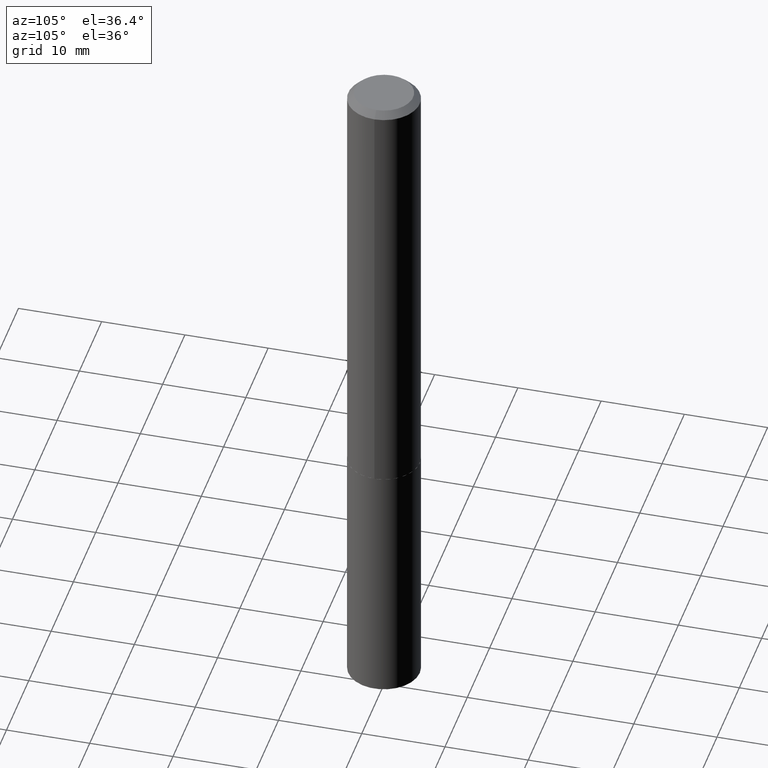
[diagram: clean part render]
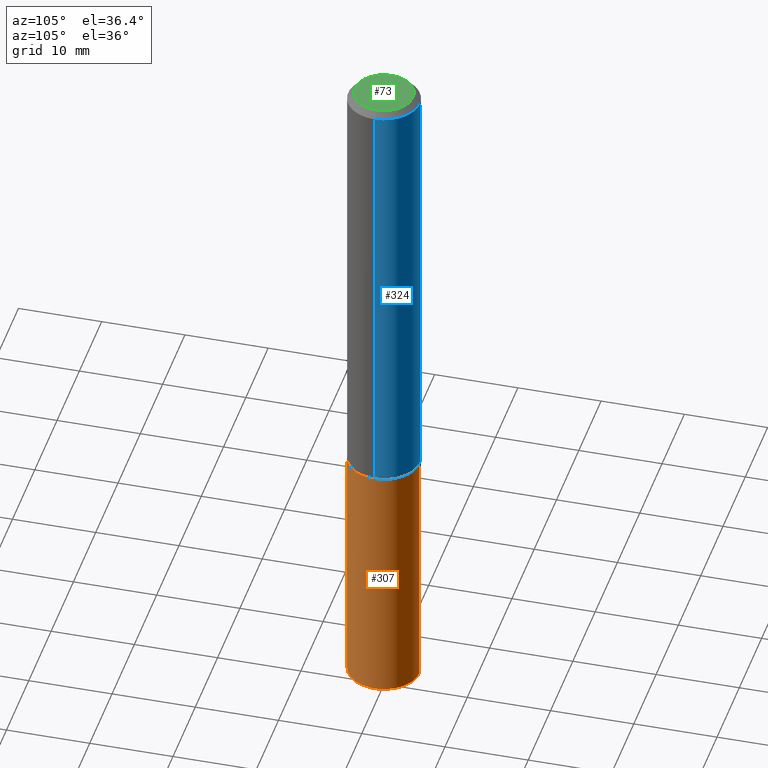
[diagram: same view with three faces highlighted in distinct colors, each labeled with its STEP entity id]
A machine part, auxiliary view with three faces highlighted in distinct colors.
Their STEP definitions:

[orange] entity #307 — the highlighted cylindrical surface (partial cylindrical patch) has radius 4.3002 mm, axis along (-0, 0, 1).
#6 = CARTESIAN_POINT ( 'NONE',  ( 5.064321350728799708E-29, -7.230508704610271415E-15, -2.070900000000000407 ) ) ;
#7 = CARTESIAN_POINT ( 'NONE',  ( -1.182215581332204746E-15, -0.1693000000000113858, -3.261736201721411099 ) ) ;
#32 = VECTOR ( 'NONE', #309, 39.37007874015748143 ) ;
#42 = CIRCLE ( 'NONE', #162, 0.1693000000000000338 ) ;
#44 = EDGE_CURVE ( 'NONE', #94, #151, #238, .T. ) ;
#50 = ORIENTED_EDGE ( 'NONE', *, *, #44, .F. ) ;
#56 = DIRECTION ( 'NONE',  ( -6.982962677686265922E-15, -1.000000000000000000, 3.227227399485248397E-15 ) ) ;
#58 = DIRECTION ( 'NONE',  ( -6.982962677686265922E-15, -1.000000000000000000, 3.227227399485248397E-15 ) ) ;
#60 = AXIS2_PLACEMENT_3D ( 'NONE', #249, #241, #56 ) ;
#77 = DIRECTION ( 'NONE',  ( -2.445454975221157966E-29, 3.491501145570772643E-15, 1.000000000000000000 ) ) ;
#86 = CIRCLE ( 'NONE', #60, 0.1693000000000000338 ) ;
#88 = DIRECTION ( 'NONE',  ( -2.445454975221157966E-29, 3.491501145570772643E-15, 1.000000000000000000 ) ) ;
#94 = VERTEX_POINT ( 'NONE', #7 ) ;
#107 = EDGE_CURVE ( 'NONE', #94, #229, #86, .T. ) ;
#125 = DIRECTION ( 'NONE',  ( -6.982962677686265922E-15, -1.000000000000000000, 3.227227399485248397E-15 ) ) ;
#131 = CARTESIAN_POINT ( 'NONE',  ( 1.202948851641929333E-15, 0.1692999999999886263, -3.261736201721411987 ) ) ;
#151 = VERTEX_POINT ( 'NONE', #364 ) ;
#156 = CARTESIAN_POINT ( 'NONE',  ( 1.202948851641900145E-15, 0.1692999999999927896, -2.070900000000000851 ) ) ;
#162 = AXIS2_PLACEMENT_3D ( 'NONE', #6, #240, #125 ) ;
#180 = LINE ( 'NONE', #156, #32 ) ;
#186 = ORIENTED_EDGE ( 'NONE', *, *, #347, .T. ) ;
#198 = EDGE_LOOP ( 'NONE', ( #204, #186, #300, #50 ) ) ;
#204 = ORIENTED_EDGE ( 'NONE', *, *, #107, .T. ) ;
#211 = CYLINDRICAL_SURFACE ( 'NONE', #234, 0.1693000000000000338 ) ;
#229 = VERTEX_POINT ( 'NONE', #131 ) ;
#234 = AXIS2_PLACEMENT_3D ( 'NONE', #274, #88, #58 ) ;
#235 = FACE_OUTER_BOUND ( 'NONE', #198, .T. ) ;
#238 = LINE ( 'NONE', #315, #298 ) ;
#240 = DIRECTION ( 'NONE',  ( -2.445454975221157966E-29, 3.491501145570772643E-15, 1.000000000000000000 ) ) ;
#241 = DIRECTION ( 'NONE',  ( -2.445454975221157966E-29, 3.491501145570772643E-15, 1.000000000000000000 ) ) ;
#249 = CARTESIAN_POINT ( 'NONE',  ( 7.976457664901892933E-29, -1.138831466710772650E-14, -3.261736201721411543 ) ) ;
#274 = CARTESIAN_POINT ( 'NONE',  ( 5.064321350728799708E-29, -7.230508704610271415E-15, -2.070900000000000407 ) ) ;
#298 = VECTOR ( 'NONE', #77, 39.37007874015748143 ) ;
#300 = ORIENTED_EDGE ( 'NONE', *, *, #317, .F. ) ;
#307 = ADVANCED_FACE ( 'NONE', ( #235 ), #211, .T. ) ;
#309 = DIRECTION ( 'NONE',  ( -2.445454975221157966E-29, 3.491501145570772643E-15, 1.000000000000000000 ) ) ;
#315 = CARTESIAN_POINT ( 'NONE',  ( -1.182215581332234328E-15, -0.1693000000000072502, -2.070899999999999963 ) ) ;
#317 = EDGE_CURVE ( 'NONE', #151, #357, #42, .T. ) ;
#320 = CARTESIAN_POINT ( 'NONE',  ( 1.202948851641929530E-15, 0.1692999999999928173, -2.070900000000000851 ) ) ;
#347 = EDGE_CURVE ( 'NONE', #229, #357, #180, .T. ) ;
#357 = VERTEX_POINT ( 'NONE', #320 ) ;
#364 = CARTESIAN_POINT ( 'NONE',  ( -1.182215581332234328E-15, -0.1693000000000072502, -2.070899999999999963 ) ) ;

[blue] entity #324 — the highlighted cylindrical surface (partial cylindrical patch) has radius 4.3002 mm, axis along (-0, 0, 1).
#3 = EDGE_CURVE ( 'NONE', #146, #276, #387, .T. ) ;
#11 = EDGE_CURVE ( 'NONE', #353, #146, #65, .T. ) ;
#30 = CARTESIAN_POINT ( 'NONE',  ( 0.1693000000000000338, -1.291324373171134113E-15, -0.03125000000000020123 ) ) ;
#33 = DIRECTION ( 'NONE',  ( 1.000000000000000000, -6.982962677686266711E-15, 4.876176775795935793E-29 ) ) ;
#35 = DIRECTION ( 'NONE',  ( 1.000000000000000000, -6.982962677686264344E-15, 0.000000000000000000 ) ) ;
#39 = DIRECTION ( 'NONE',  ( -2.445468806185136877E-29, 3.491481338843145188E-15, 1.000000000000000000 ) ) ;
#40 = VECTOR ( 'NONE', #39, 39.37007874015748143 ) ;
#46 = LINE ( 'NONE', #101, #120 ) ;
#52 = ORIENTED_EDGE ( 'NONE', *, *, #3, .F. ) ;
#65 = LINE ( 'NONE', #344, #40 ) ;
#87 = CIRCLE ( 'NONE', #313, 0.1693000000000002836 ) ;
#90 = DIRECTION ( 'NONE',  ( -2.445468806185136597E-29, 3.491481338843145583E-15, 1.000000000000000000 ) ) ;
#101 = CARTESIAN_POINT ( 'NONE',  ( -0.1693000000000001448, 1.202948851641850644E-15, -8.327757107801562718E-30 ) ) ;
#120 = VECTOR ( 'NONE', #215, 39.37007874015748143 ) ;
#146 = VERTEX_POINT ( 'NONE', #30 ) ;
#149 = FACE_OUTER_BOUND ( 'NONE', #335, .T. ) ;
#154 = ORIENTED_EDGE ( 'NONE', *, *, #11, .F. ) ;
#176 = CARTESIAN_POINT ( 'NONE',  ( 5.063098616325708028E-29, -7.228762963940850701E-15, -2.070400000000000240 ) ) ;
#208 = DIRECTION ( 'NONE',  ( -2.445468806185136597E-29, 3.491481338843145583E-15, 1.000000000000000000 ) ) ;
#214 = DIRECTION ( 'NONE',  ( 1.000000000000000000, -6.982962677686265922E-15, 0.000000000000000000 ) ) ;
#215 = DIRECTION ( 'NONE',  ( -2.445468806185136877E-29, 3.491481338843145188E-15, 1.000000000000000000 ) ) ;
#244 = DIRECTION ( 'NONE',  ( -2.445468806185136597E-29, 3.491481338843145583E-15, 1.000000000000000000 ) ) ;
#247 = CARTESIAN_POINT ( 'NONE',  ( -0.1693000000000000338, -2.465987026247997876E-15, -0.03125000000000020123 ) ) ;
#258 = AXIS2_PLACEMENT_3D ( 'NONE', #366, #208, #33 ) ;
#271 = CYLINDRICAL_SURFACE ( 'NONE', #258, 0.1693000000000001448 ) ;
#273 = ORIENTED_EDGE ( 'NONE', *, *, #314, .T. ) ;
#276 = VERTEX_POINT ( 'NONE', #247 ) ;
#297 = ORIENTED_EDGE ( 'NONE', *, *, #359, .T. ) ;
#303 = VERTEX_POINT ( 'NONE', #342 ) ;
#313 = AXIS2_PLACEMENT_3D ( 'NONE', #176, #90, #35 ) ;
#314 = EDGE_CURVE ( 'NONE', #353, #303, #87, .T. ) ;
#321 = AXIS2_PLACEMENT_3D ( 'NONE', #361, #244, #214 ) ;
#324 = ADVANCED_FACE ( 'NONE', ( #149 ), #271, .T. ) ;
#335 = EDGE_LOOP ( 'NONE', ( #273, #297, #52, #154 ) ) ;
#342 = CARTESIAN_POINT ( 'NONE',  ( -0.1693000000000002836, -6.025814112298998676E-15, -2.070400000000000240 ) ) ;
#344 = CARTESIAN_POINT ( 'NONE',  ( 0.1693000000000001448, -1.182215581332285999E-15, 8.255367281422526831E-30 ) ) ;
#353 = VERTEX_POINT ( 'NONE', #371 ) ;
#359 = EDGE_CURVE ( 'NONE', #303, #276, #46, .T. ) ;
#361 = CARTESIAN_POINT ( 'NONE',  ( 7.642090019328600035E-31, -1.091087918388489897E-16, -0.03125000000000020123 ) ) ;
#366 = CARTESIAN_POINT ( 'NONE',  ( 0.000000000000000000, 0.000000000000000000, 0.000000000000000000 ) ) ;
#371 = CARTESIAN_POINT ( 'NONE',  ( 0.1693000000000002836, -8.410978545273137094E-15, -2.070400000000000240 ) ) ;
#387 = CIRCLE ( 'NONE', #321, 0.1693000000000000338 ) ;

[green] entity #73 — the highlighted planar face has unit normal (0, -0, -1).
#8 = PLANE ( 'NONE',  #169 ) ;
#18 = CIRCLE ( 'NONE', #228, 0.1380500000000000060 ) ;
#36 = EDGE_CURVE ( 'NONE', #262, #390, #246, .T. ) ;
#51 = DIRECTION ( 'NONE',  ( 1.000000000000000000, -6.982962677686266711E-15, 4.876184709317979001E-29 ) ) ;
#61 = EDGE_CURVE ( 'NONE', #390, #262, #18, .T. ) ;
#70 = DIRECTION ( 'NONE',  ( -1.000000000000000000, 6.982962677686265922E-15, -4.876176775795935793E-29 ) ) ;
#72 = AXIS2_PLACEMENT_3D ( 'NONE', #374, #137, #51 ) ;
#73 = ADVANCED_FACE ( 'NONE', ( #337 ), #8, .F. ) ;
#96 = CARTESIAN_POINT ( 'NONE',  ( -2.994835545909349753E-48, 4.275831445897006817E-34, 1.224646799147362773E-19 ) ) ;
#137 = DIRECTION ( 'NONE',  ( -2.445468806185136597E-29, 3.491481338843145583E-15, 1.000000000000000000 ) ) ;
#169 = AXIS2_PLACEMENT_3D ( 'NONE', #96, #352, #70 ) ;
#184 = ORIENTED_EDGE ( 'NONE', *, *, #61, .T. ) ;
#209 = DIRECTION ( 'NONE',  ( -2.445468806185136597E-29, 3.491481338843145583E-15, 1.000000000000000000 ) ) ;
#228 = AXIS2_PLACEMENT_3D ( 'NONE', #245, #209, #370 ) ;
#243 = CARTESIAN_POINT ( 'NONE',  ( -0.1380500000000000060, 1.018552393574012742E-15, 2.449293598225403624E-19 ) ) ;
#245 = CARTESIAN_POINT ( 'NONE',  ( -5.989671091818699506E-48, 8.551662891794013634E-34, 2.449293598294725547E-19 ) ) ;
#246 = CIRCLE ( 'NONE', #72, 0.1380500000000000060 ) ;
#262 = VERTEX_POINT ( 'NONE', #243 ) ;
#280 = ORIENTED_EDGE ( 'NONE', *, *, #36, .T. ) ;
#337 = FACE_OUTER_BOUND ( 'NONE', #372, .T. ) ;
#352 = DIRECTION ( 'NONE',  ( 2.438088387897960049E-29, -3.491481338843145188E-15, -1.000000000000000000 ) ) ;
#370 = DIRECTION ( 'NONE',  ( 1.000000000000000000, -6.982962677686266711E-15, 4.876184709317979001E-29 ) ) ;
#372 = EDGE_LOOP ( 'NONE', ( #280, #184 ) ) ;
#374 = CARTESIAN_POINT ( 'NONE',  ( -5.989671091818699506E-48, 8.551662891794013634E-34, 2.449293598294725547E-19 ) ) ;
#383 = CARTESIAN_POINT ( 'NONE',  ( 0.1380500000000000060, -1.108841425726964737E-15, 2.449293598367200216E-19 ) ) ;
#390 = VERTEX_POINT ( 'NONE', #383 ) ;